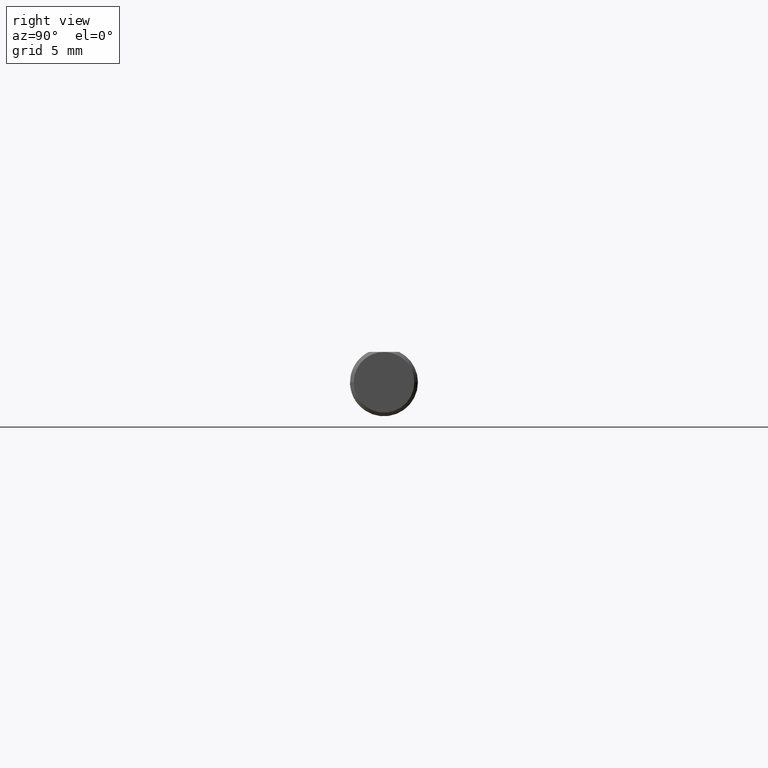
[diagram: clean part render]
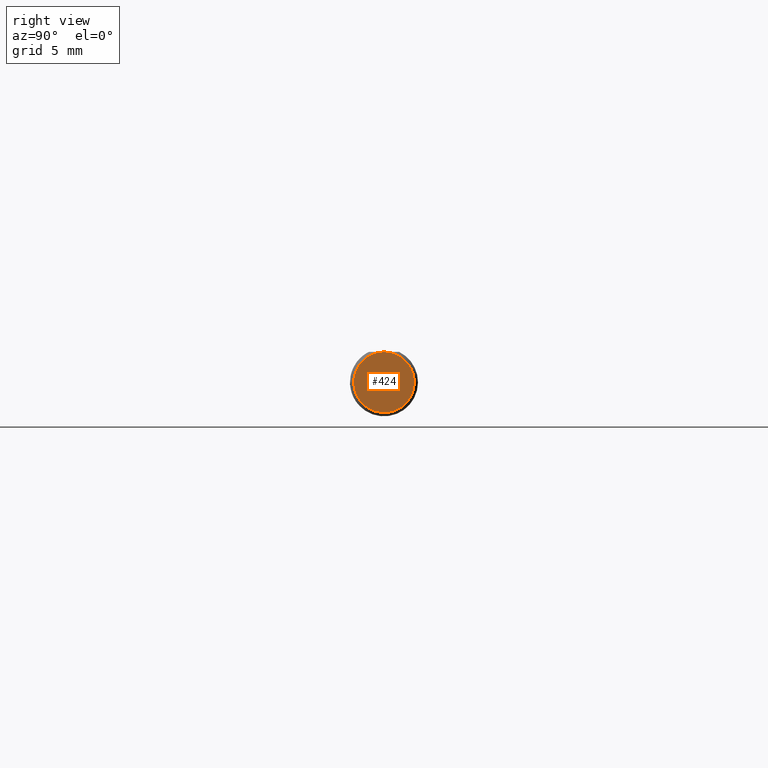
[diagram: same view with one face highlighted and labeled with its STEP entity id]
A machine part, right view. The second image highlights one B-rep face of the part: STEP entity #424.
In plain terms, the highlighted planar face has unit normal (1, 0, -0).
Its self-contained STEP definition (entity closure, byte-faithful):
#15 = EDGE_CURVE ( 'NONE', #64, #467, #754, .T. ) ;
#51 = DIRECTION ( 'NONE',  ( 1.000000000000000000, 1.224646799147353700E-16, -0.000000000000000000 ) ) ;
#64 = VERTEX_POINT ( 'NONE', #250 ) ;
#68 = DIRECTION ( 'NONE',  ( -1.224646799147353700E-16, 1.000000000000000000, 0.000000000000000000 ) ) ;
#134 = FACE_OUTER_BOUND ( 'NONE', #350, .T. ) ;
#145 = PLANE ( 'NONE',  #1009 ) ;
#234 = DIRECTION ( 'NONE',  ( 1.000000000000000000, 1.224646799147353700E-16, -0.000000000000000000 ) ) ;
#250 = CARTESIAN_POINT ( 'NONE',  ( -2.527892854954154511E-33, 1.627223653990697955E-16, 0.08360000000000007703 ) ) ;
#251 = CIRCLE ( 'NONE', #983, 0.08360000000000042397 ) ;
#350 = EDGE_LOOP ( 'NONE', ( #498, #844, #966 ) ) ;
#365 = DIRECTION ( 'NONE',  ( -1.224646799147353700E-16, 1.000000000000000000, 0.000000000000000000 ) ) ;
#424 = ADVANCED_FACE ( 'NONE', ( #134 ), #145, .T. ) ;
#467 = VERTEX_POINT ( 'NONE', #665 ) ;
#491 = CARTESIAN_POINT ( 'NONE',  ( 5.731347020009609255E-18, 1.836970198721030920E-16, 0.000000000000000000 ) ) ;
#497 = DIRECTION ( 'NONE',  ( -1.224646799147353700E-16, 1.000000000000000000, 0.000000000000000000 ) ) ;
#498 = ORIENTED_EDGE ( 'NONE', *, *, #15, .T. ) ;
#504 = EDGE_CURVE ( 'NONE', #467, #840, #821, .T. ) ;
#553 = CARTESIAN_POINT ( 'NONE',  ( 5.731347020009609255E-18, 1.836970198721030920E-16, 0.000000000000000000 ) ) ;
#569 = AXIS2_PLACEMENT_3D ( 'NONE', #491, #960, #497 ) ;
#625 = CARTESIAN_POINT ( 'NONE',  ( 5.731347020009609255E-18, 1.836970198721030920E-16, 0.000000000000000000 ) ) ;
#644 = DIRECTION ( 'NONE',  ( 1.000000000000000000, 1.224646799147353700E-16, -0.000000000000000000 ) ) ;
#665 = CARTESIAN_POINT ( 'NONE',  ( 1.596939426088153736E-17, -0.08360000000000022968, 0.000000000000000000 ) ) ;
#684 = AXIS2_PLACEMENT_3D ( 'NONE', #553, #644, #887 ) ;
#742 = EDGE_CURVE ( 'NONE', #840, #64, #251, .T. ) ;
#745 = CARTESIAN_POINT ( 'NONE',  ( -4.506700220862321160E-18, 0.08360000000000061826, 1.085037064044558024E-17 ) ) ;
#754 = CIRCLE ( 'NONE', #569, 0.08360000000000042397 ) ;
#763 = CARTESIAN_POINT ( 'NONE',  ( 5.731347020009631596E-18, 7.018875782857520173E-34, 0.000000000000000000 ) ) ;
#821 = CIRCLE ( 'NONE', #684, 0.08360000000000042397 ) ;
#840 = VERTEX_POINT ( 'NONE', #745 ) ;
#844 = ORIENTED_EDGE ( 'NONE', *, *, #504, .T. ) ;
#887 = DIRECTION ( 'NONE',  ( -1.224646799147353700E-16, 1.000000000000000000, 0.000000000000000000 ) ) ;
#960 = DIRECTION ( 'NONE',  ( 1.000000000000000000, 1.224646799147353700E-16, -0.000000000000000000 ) ) ;
#966 = ORIENTED_EDGE ( 'NONE', *, *, #742, .T. ) ;
#983 = AXIS2_PLACEMENT_3D ( 'NONE', #625, #234, #68 ) ;
#1009 = AXIS2_PLACEMENT_3D ( 'NONE', #763, #51, #365 ) ;